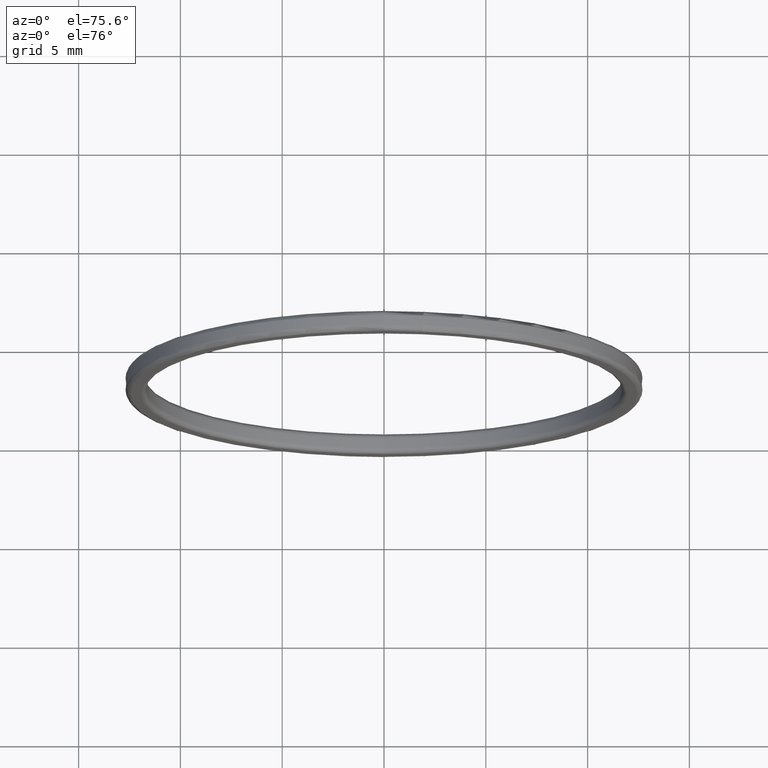
[diagram: clean part render]
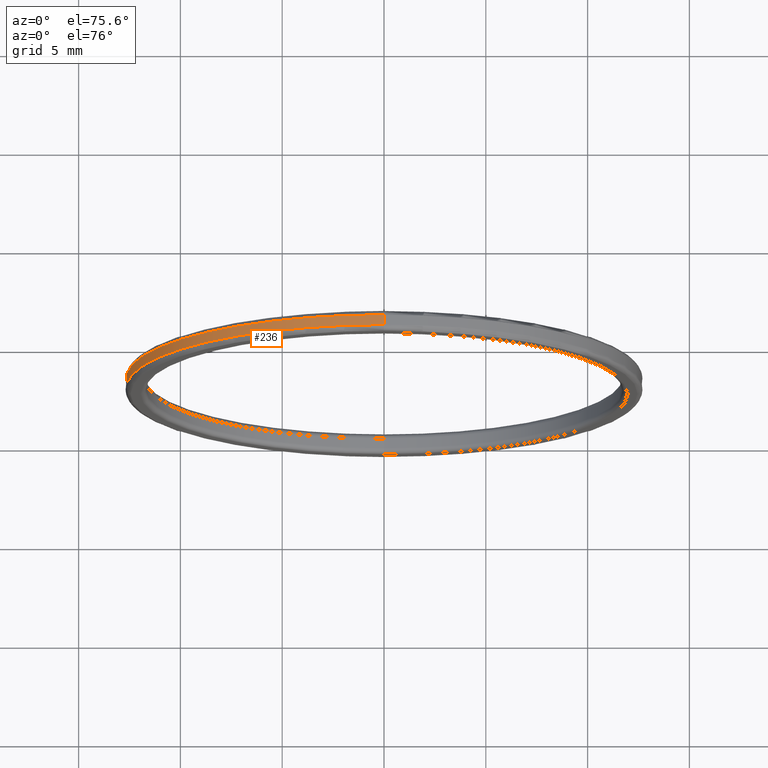
[diagram: same view with one face highlighted and labeled with its STEP entity id]
A machine part, auxiliary view. The second image highlights one B-rep face of the part: STEP entity #236.
In plain terms, the highlighted cylindrical surface (partial cylindrical patch) has radius 12.7 mm, axis along (-0, 1, -0).
Its self-contained STEP definition (entity closure, byte-faithful):
#5 = CARTESIAN_POINT ( 'NONE',  ( 0.0000000000000000000, 0.2499999999999985012, 0.0000000000000000000 ) ) ;
#6 = DIRECTION ( 'NONE',  ( 0.0000000000000000000, 0.0000000000000000000, -1.000000000000000000 ) ) ;
#10 = CARTESIAN_POINT ( 'NONE',  ( 0.0000000000000000000, -0.2500000000000011102, 12.69999999999999929 ) ) ;
#17 = DIRECTION ( 'NONE',  ( -0.0000000000000000000, 1.000000000000000000, -0.0000000000000000000 ) ) ;
#23 = CARTESIAN_POINT ( 'NONE',  ( 0.0000000000000000000, 0.2499999999999985012, 12.69999999999999929 ) ) ;
#29 = DIRECTION ( 'NONE',  ( -0.0000000000000000000, 1.000000000000000000, -0.0000000000000000000 ) ) ;
#33 = VERTEX_POINT ( 'NONE', #10 ) ;
#36 = CARTESIAN_POINT ( 'NONE',  ( 1.555301434917138433E-15, 4.847222222222231203, -12.69999999999999929 ) ) ;
#66 = EDGE_CURVE ( 'NONE', #159, #33, #325, .T. ) ;
#68 = ORIENTED_EDGE ( 'NONE', *, *, #205, .T. ) ;
#110 = VERTEX_POINT ( 'NONE', #23 ) ;
#125 = AXIS2_PLACEMENT_3D ( 'NONE', #196, #17, #438 ) ;
#129 = CARTESIAN_POINT ( 'NONE',  ( 0.0000000000000000000, 4.847222222222231203, 0.0000000000000000000 ) ) ;
#148 = VECTOR ( 'NONE', #324, 1000.000000000000000 ) ;
#157 = CARTESIAN_POINT ( 'NONE',  ( 0.0000000000000000000, 4.847222222222231203, 12.69999999999999929 ) ) ;
#159 = VERTEX_POINT ( 'NONE', #237 ) ;
#174 = AXIS2_PLACEMENT_3D ( 'NONE', #129, #29, #280 ) ;
#196 = CARTESIAN_POINT ( 'NONE',  ( 0.0000000000000000000, -0.2500000000000011102, 0.0000000000000000000 ) ) ;
#197 = LINE ( 'NONE', #157, #432 ) ;
#205 = EDGE_CURVE ( 'NONE', #33, #110, #197, .T. ) ;
#208 = EDGE_LOOP ( 'NONE', ( #263, #240, #68, #331 ) ) ;
#236 = ADVANCED_FACE ( 'NONE', ( #401 ), #296, .T. ) ;
#237 = CARTESIAN_POINT ( 'NONE',  ( 1.555301434917138433E-15, -0.2500000000000011102, -12.69999999999999929 ) ) ;
#238 = CIRCLE ( 'NONE', #403, 12.69999999999999929 ) ;
#240 = ORIENTED_EDGE ( 'NONE', *, *, #66, .T. ) ;
#252 = DIRECTION ( 'NONE',  ( 0.0000000000000000000, -1.000000000000000000, 0.0000000000000000000 ) ) ;
#263 = ORIENTED_EDGE ( 'NONE', *, *, #363, .F. ) ;
#280 = DIRECTION ( 'NONE',  ( 0.0000000000000000000, 0.0000000000000000000, 1.000000000000000000 ) ) ;
#284 = CARTESIAN_POINT ( 'NONE',  ( 1.555301434917138433E-15, 0.2499999999999985012, -12.69999999999999929 ) ) ;
#296 = CYLINDRICAL_SURFACE ( 'NONE', #174, 12.69999999999999929 ) ;
#304 = DIRECTION ( 'NONE',  ( -0.0000000000000000000, 1.000000000000000000, -0.0000000000000000000 ) ) ;
#325 = CIRCLE ( 'NONE', #125, 12.69999999999999929 ) ;
#324 = DIRECTION ( 'NONE',  ( -0.0000000000000000000, 1.000000000000000000, -0.0000000000000000000 ) ) ;
#331 = ORIENTED_EDGE ( 'NONE', *, *, #367, .T. ) ;
#363 = EDGE_CURVE ( 'NONE', #159, #433, #387, .T. ) ;
#367 = EDGE_CURVE ( 'NONE', #110, #433, #238, .T. ) ;
#387 = LINE ( 'NONE', #36, #148 ) ;
#401 = FACE_OUTER_BOUND ( 'NONE', #208, .T. ) ;
#403 = AXIS2_PLACEMENT_3D ( 'NONE', #5, #252, #6 ) ;
#432 = VECTOR ( 'NONE', #304, 1000.000000000000000 ) ;
#433 = VERTEX_POINT ( 'NONE', #284 ) ;
#438 = DIRECTION ( 'NONE',  ( 0.0000000000000000000, 0.0000000000000000000, 1.000000000000000000 ) ) ;